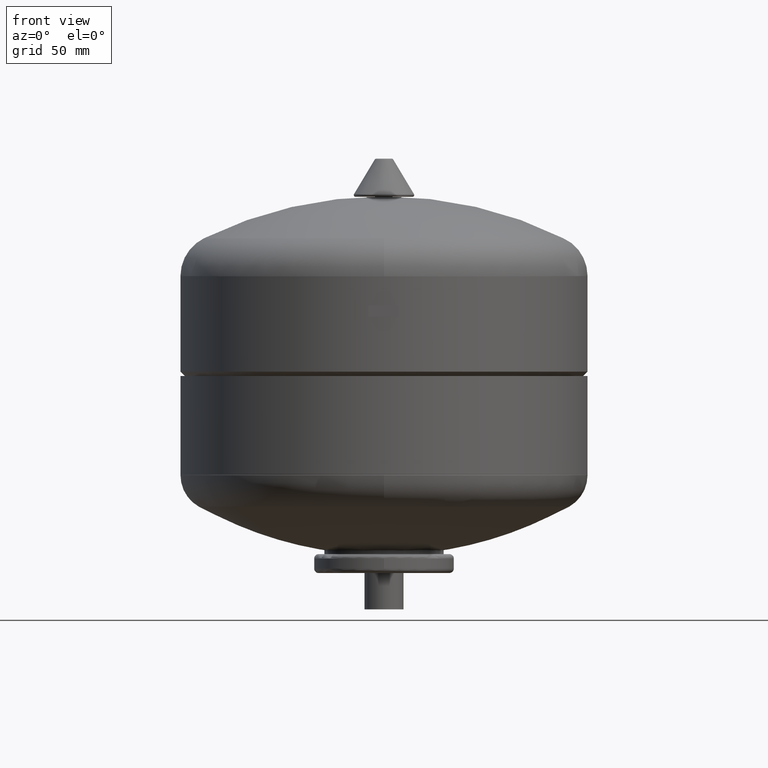
[diagram: clean part render]
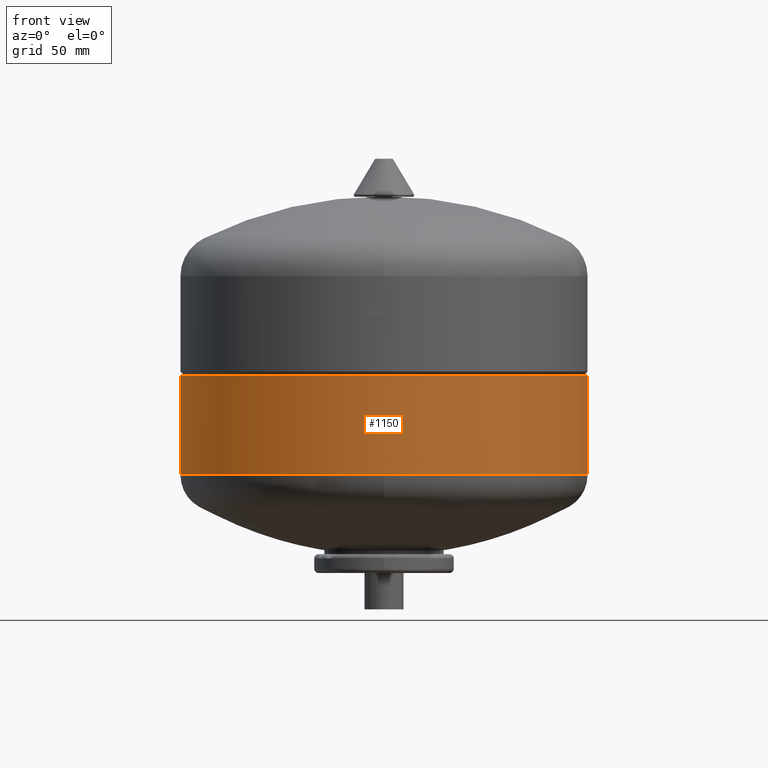
[diagram: same view with one face highlighted and labeled with its STEP entity id]
A machine part, front view. The second image highlights one B-rep face of the part: STEP entity #1150.
In plain terms, the highlighted cylindrical surface (partial cylindrical patch) has radius 140 mm, axis along (0, 0, -1).
Its self-contained STEP definition (entity closure, byte-faithful):
#950=CARTESIAN_POINT('',(139.999999999999910,0.0,93.0));
#951=VERTEX_POINT('',#950);
#952=CARTESIAN_POINT('',(139.999999999999970,0.0,160.499999999999970));
#953=VERTEX_POINT('',#952);
#954=CARTESIAN_POINT('',(139.999999999999910,0.0,93.0));
#955=DIRECTION('',(0.0,0.0,1.0));
#956=VECTOR('',#955,67.499999999999972);
#957=LINE('',#954,#956);
#958=EDGE_CURVE('',#951,#953,#957,.T.);
#960=CARTESIAN_POINT('',(-139.999999999999910,1.714449E-014,93.0));
#961=VERTEX_POINT('',#960);
#969=CARTESIAN_POINT('',(-139.999999999999910,1.714449E-014,160.499999999999970));
#970=VERTEX_POINT('',#969);
#971=CARTESIAN_POINT('',(-139.999999999999910,1.714449E-014,93.0));
#972=DIRECTION('',(0.0,0.0,1.0));
#973=VECTOR('',#972,67.499999999999972);
#974=LINE('',#971,#973);
#975=EDGE_CURVE('',#961,#970,#974,.T.);
#1067=CARTESIAN_POINT('',(0.0,0.0,160.499999999999970));
#1068=DIRECTION('',(0.0,0.0,1.0));
#1069=DIRECTION('',(1.0,0.0,0.0));
#1070=AXIS2_PLACEMENT_3D('',#1067,#1068,#1069);
#1071=CIRCLE('',#1070,139.999999999999970);
#1072=EDGE_CURVE('',#970,#953,#1071,.T.);
#1133=CARTESIAN_POINT('',(0.0,0.0,98.0));
#1134=DIRECTION('',(0.0,0.0,-1.0));
#1135=DIRECTION('',(1.0,0.0,0.0));
#1136=AXIS2_PLACEMENT_3D('',#1133,#1134,#1135);
#1137=CYLINDRICAL_SURFACE('',#1136,139.999999999999910);
#1138=ORIENTED_EDGE('',*,*,#958,.T.);
#1139=ORIENTED_EDGE('',*,*,#1072,.F.);
#1140=ORIENTED_EDGE('',*,*,#975,.F.);
#1141=CARTESIAN_POINT('',(0.0,0.0,93.0));
#1142=DIRECTION('',(0.0,0.0,1.0));
#1143=DIRECTION('',(1.0,0.0,0.0));
#1144=AXIS2_PLACEMENT_3D('',#1141,#1142,#1143);
#1145=CIRCLE('',#1144,139.999999999999910);
#1146=EDGE_CURVE('',#961,#951,#1145,.T.);
#1147=ORIENTED_EDGE('',*,*,#1146,.T.);
#1148=EDGE_LOOP('',(#1138,#1139,#1140,#1147));
#1149=FACE_OUTER_BOUND('',#1148,.T.);
#1150=ADVANCED_FACE('',(#1149),#1137,.T.);